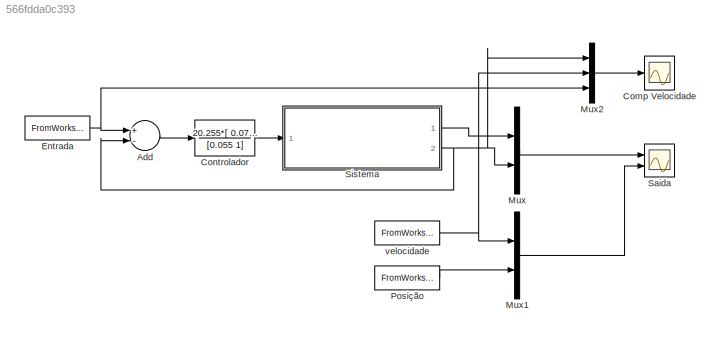
MODEL slx_566fdda0c393
KIND model
CONFIG AbsTol = auto
CONFIG FixedStep = auto
CONFIG MaxStep = 1e-3
CONFIG MinStep = auto
CONFIG RelTol = 1e-3
CONFIG SampleTimeConstraint = Unconstrained
CONFIG Solver = ode45
CONFIG SolverMode = Auto
CONFIG SolverName = ode45
CONFIG StartTime = 0.0
CONFIG StopTime = 10
BLOCK [Sum] Add
  InputSameDT = off
  Inputs = +-
  OutDataTypeStr = Inherit: Inherit via internal rule
  Ports = [2, 1]
  SaturateOnIntegerOverflow = off
BLOCK [Scope] Comp Velocidade
  Ports = [1]
  ScopeSpecificationString = Simulink.scopes.TimeScopeBlockCfg('CurrentConfiguration', extmgr.ConfigurationSet(extmgr.Configuration('Core','General UI',true),extmgr.Configuration('Core','Source UI',true),extmgr.Configuration('Sources','WiredSimulink',true,'DataLoggingVariableName','ScopeData1','DataLoggingSaveFormat','StructureWithTime','DataLoggingDecimation','1','DataLoggingDecimateData',true),extmgr.Configuration('Visuals'...<+1821ch>
BLOCK [TransferFcn] Controlador
  Denominator = [0.055 1]
  Numerator = 20.255*[ 0.079 1]
BLOCK [FromWorkspace] Entrada
  SampleTime = 0
  VariableName = in
  ZeroCross = on
BLOCK [Mux] Mux
  DisplayOption = bar
  Inputs = 2
  Ports = [2, 1]
BLOCK [Mux] Mux1
  DisplayOption = bar
  Inputs = 2
  Ports = [2, 1]
BLOCK [Mux] Mux2
  DisplayOption = bar
  Inputs = 3
  Ports = [3, 1]
BLOCK [FromWorkspace] Posição
  SampleTime = 0
  VariableName = pos
  ZeroCross = on
BLOCK [Scope] Saida
  NumInputPorts = 2
  Ports = [2]
  ScopeSpecificationString = Simulink.scopes.TimeScopeBlockCfg('CurrentConfiguration', extmgr.ConfigurationSet(extmgr.Configuration('Core','General UI',true),extmgr.Configuration('Core','Source UI',true),extmgr.Configuration('Sources','WiredSimulink',true,'DataLoggingSaveFormat','StructureWithTime','DataLoggingDecimation','1','DataLoggingDecimateData',true),extmgr.Configuration('Visuals','Time Domain',true,'SerializedDisplays...<+2325ch>
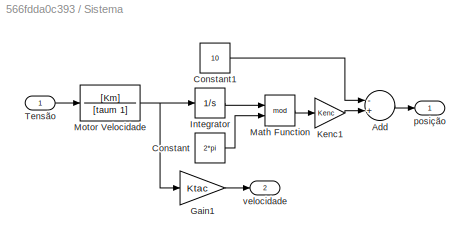
BLOCK [SubSystem] Sistema
  Ports = [1, 2]
  RequestExecContextInheritance = off
  Variant = off
BLOCK [Sum] Sistema/Add
  InputSameDT = off
  Inputs = -+
  OutDataTypeStr = Inherit: Inherit via internal rule
  Ports = [2, 1]
  SaturateOnIntegerOverflow = off
BLOCK [Constant] Sistema/Constant
  Value = 2*pi
BLOCK [Constant] Sistema/Constant1
  Value = 10
BLOCK [Gain] Sistema/Gain1
  Gain = Ktac
  OutDataTypeStr = Inherit: Inherit via internal rule
  ParamDataTypeStr = Inherit: Inherit via internal rule
  SaturateOnIntegerOverflow = off
BLOCK [Integrator] Sistema/Integrator
  Ports = [1, 1]
BLOCK [Gain] Sistema/Kenc1
  Gain = Kenc
  OutDataTypeStr = Inherit: Inherit via internal rule
  ParamDataTypeStr = Inherit: Inherit via internal rule
  SaturateOnIntegerOverflow = off
BLOCK [Math] Sistema/Math Function
  Operator = mod
  Ports = [2, 1]
BLOCK [TransferFcn] Sistema/Motor Velocidade
  Denominator = [taum 1]
  Numerator = [Km]
BLOCK [Inport] Sistema/Tensão
  IconDisplay = Port number
BLOCK [Outport] Sistema/posição
  IconDisplay = Port number
BLOCK [Outport] Sistema/velocidade
  IconDisplay = Port number
  Port = 2
BLOCK [FromWorkspace] velocidade
  SampleTime = 0
  VariableName = vel
  ZeroCross = on
LINE Add:1 -> Controlador:1
LINE Controlador:1 -> Sistema:1
NET Entrada:1 -> Add:1, Mux2:3
LINE Mux1:1 -> Saida:2
LINE Mux2:1 -> Comp Velocidade:1
LINE Mux:1 -> Saida:1
LINE Posição:1 -> Mux1:2
LINE Sistema/Add:1 -> Sistema/posição:1
LINE Sistema/Constant1:1 -> Sistema/Add:1
LINE Sistema/Constant:1 -> Sistema/Math Function:2
LINE Sistema/Gain1:1 -> Sistema/velocidade:1
LINE Sistema/Integrator:1 -> Sistema/Math Function:1
LINE Sistema/Kenc1:1 -> Sistema/Add:2
LINE Sistema/Math Function:1 -> Sistema/Kenc1:1
NET Sistema/Motor Velocidade:1 -> Sistema/Gain1:1, Sistema/Integrator:1
LINE Sistema/Tensão:1 -> Sistema/Motor Velocidade:1
LINE Sistema:1 -> Mux:1
NET Sistema:2 -> Add:2, Mux2:1, Mux:2
NET velocidade:1 -> Mux1:1, Mux2:2
note: NET lines group one-source signal fan-out (src -> all destinations, sorted); 1:1 wires keep LINE
